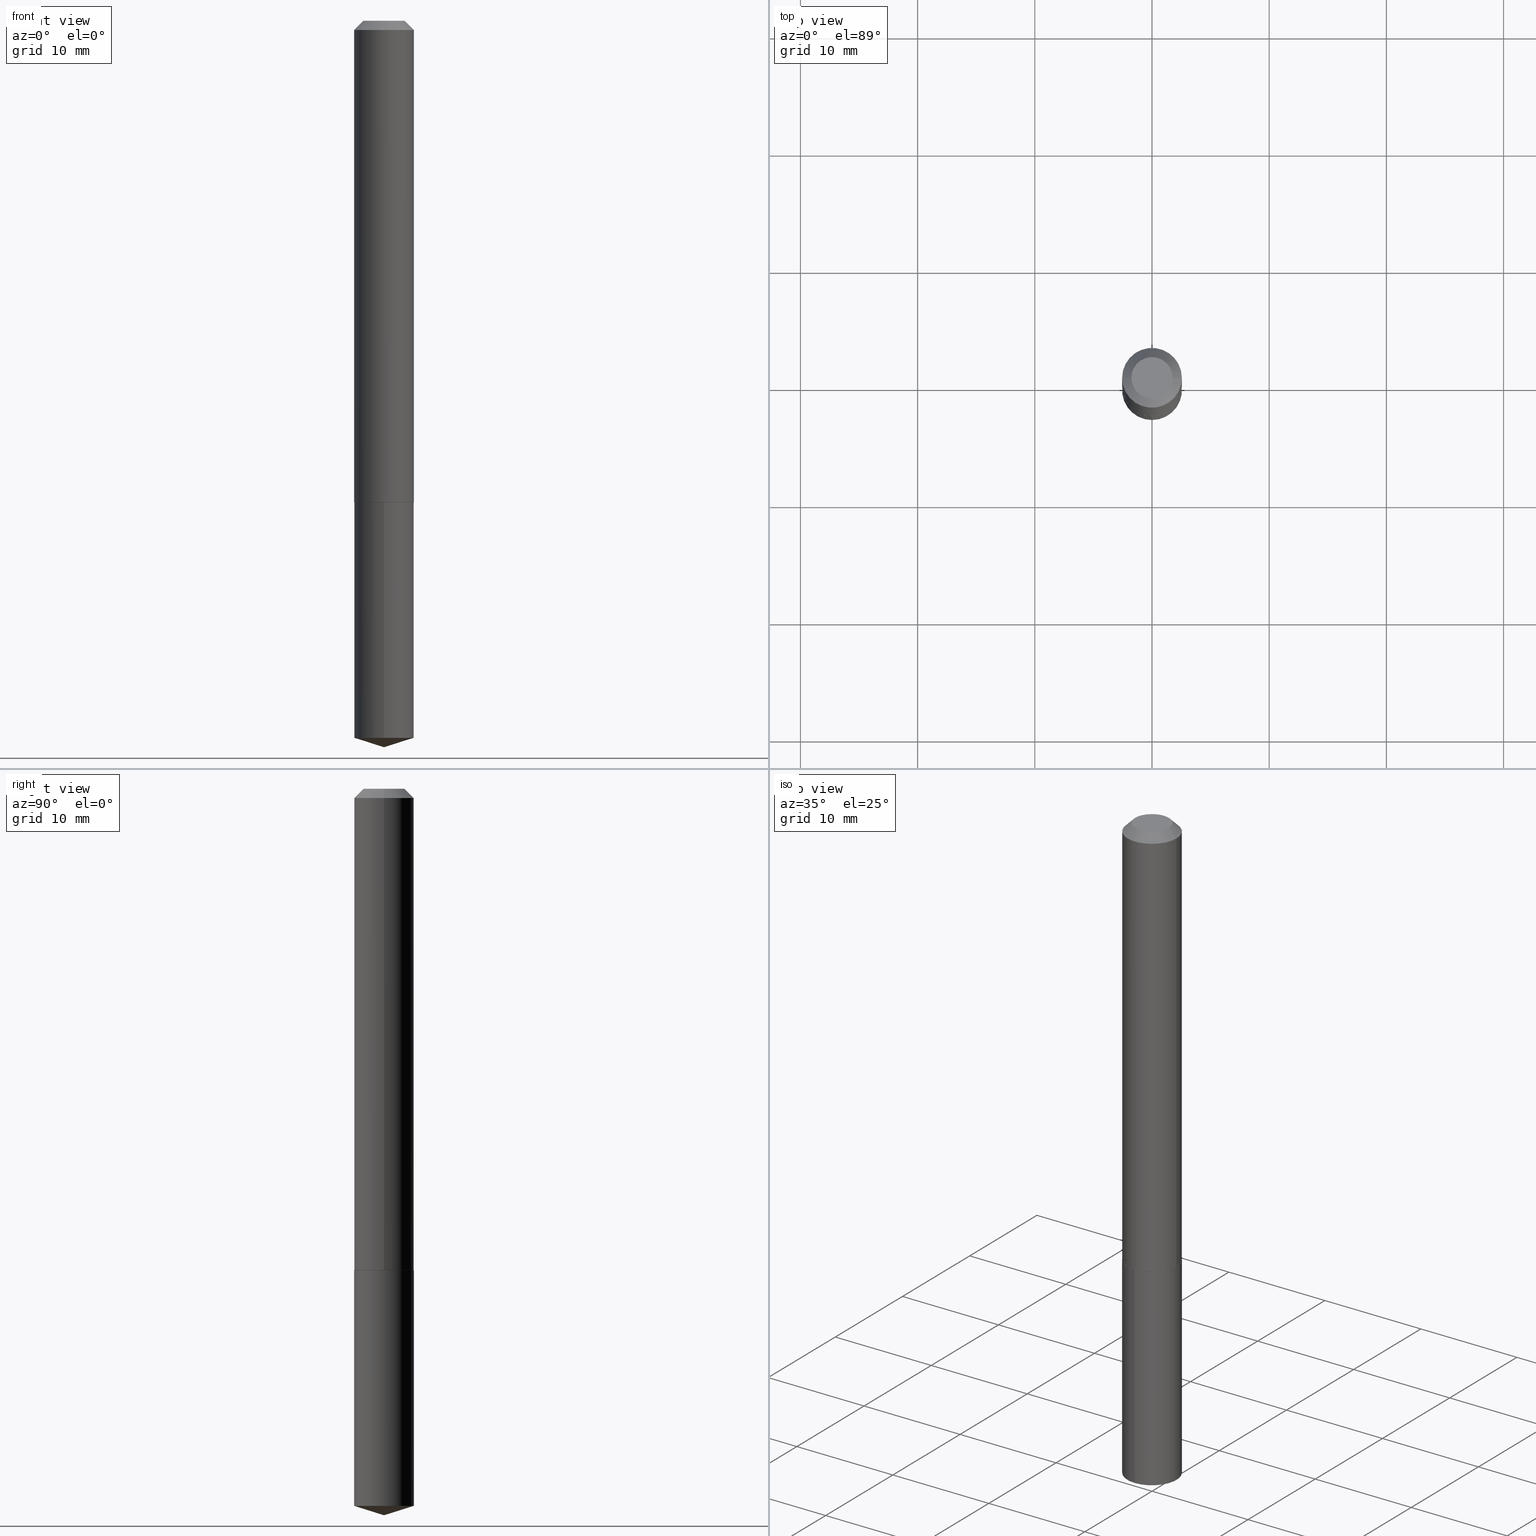
[diagram: canonical four-view strip — front | top / right | iso, engineering-drawing reading convention]
A machine part, canonical four-view strip (front | top / right | iso — engineering-drawing reading convention). The complete STEP part file that produces these views, byte-faithful:
ISO-10303-21;
HEADER;
FILE_DESCRIPTION (( 'STEP AP203' ),
    '1' );
FILE_NAME ('62113.STEP',
    '2024-04-23T06:10:52',
    ( '' ),
    ( '' ),
    'SwSTEP 2.0',
    'SolidWorks 2023',
    '' );
FILE_SCHEMA (( 'CONFIG_CONTROL_DESIGN' ));
ENDSEC;

DATA;
#1 = VERTEX_POINT ( 'NONE', #225 ) ;
#2 = CALENDAR_DATE ( 2024, 23, 4 ) ;
#3 = PERSON ( 'UNSPECIFIED', 'UNSPECIFIED', 'UNSPECIFIED', ('UNSPECIFIED'), ('UNSPECIFIED'), ('UNSPECIFIED') ) ;
#4 = DIRECTION ( 'NONE',  ( -6.982962677686266711E-15, -1.000000000000000000, 2.720964137115799877E-15 ) ) ;
#5 = CONICAL_SURFACE ( 'NONE', #289, 0.1004000000000000170, 0.7853981633974456145 ) ;
#6 = VERTEX_POINT ( 'NONE', #379 ) ;
#7 =( LENGTH_UNIT ( ) NAMED_UNIT ( * ) SI_UNIT ( $, .METRE. ) );
#8 = DIRECTION ( 'NONE',  ( 1.000000000000000000, -6.982962677686262766E-15, 0.000000000000000000 ) ) ;
#9 = ORIENTED_EDGE ( 'NONE', *, *, #31, .T. ) ;
#10 = DESIGN_CONTEXT ( 'detailed design', #189, 'design' ) ;
#11 = CC_DESIGN_PERSON_AND_ORGANIZATION_ASSIGNMENT ( #86, #172, ( #319 ) ) ;
#12 = ORIENTED_EDGE ( 'NONE', *, *, #358, .T. ) ;
#13 = LINE ( 'NONE', #130, #42 ) ;
#14 = LINE ( 'NONE', #323, #340 ) ;
#15 = DIRECTION ( 'NONE',  ( 0.7071067811864267805, -2.468850131080992517E-15, 0.7071067811866682540 ) ) ;
#16 = CARTESIAN_POINT ( 'NONE',  ( 3.957013075288169897E-29, -5.649565954382093886E-15, -1.618100000000000094 ) ) ;
#17 = APPROVAL ( #333, 'UNSPECIFIED' ) ;
#18 = PERSON_AND_ORGANIZATION ( #3, #220 ) ;
#19 = DIRECTION ( 'NONE',  ( -2.445468806185136597E-29, 3.491481338843145583E-15, 1.000000000000000000 ) ) ;
#20 = CIRCLE ( 'NONE', #240, 0.09990000000000021085 ) ;
#21 = PERSON_AND_ORGANIZATION_ROLE ( 'design_supplier' ) ;
#22 = DIRECTION ( 'NONE',  ( -1.000000000000000000, 6.982962677686266711E-15, 0.000000000000000000 ) ) ;
#23 = MECHANICAL_CONTEXT ( 'NONE', #92, 'mechanical' ) ;
#24 = ADVANCED_FACE ( 'NONE', ( #197 ), #164, .T. ) ;
#25 = APPROVAL_ROLE ( '' ) ;
#26 = DIRECTION ( 'NONE',  ( -2.445468806185136597E-29, 3.491481338843145583E-15, 1.000000000000000000 ) ) ;
#27 = EDGE_CURVE ( 'NONE', #244, #6, #191, .T. ) ;
#28 = CARTESIAN_POINT ( 'NONE',  ( 7.133849067031995762E-16, 0.1003999999999943549, -1.618100000000000316 ) ) ;
#29 = CYLINDRICAL_SURFACE ( 'NONE', #44, 0.1004000000000001142 ) ;
#30 = CARTESIAN_POINT ( 'NONE',  ( -0.06915000000000000313, 5.374262650814288063E-16, -1.904325772674491171E-17 ) ) ;
#31 = EDGE_CURVE ( 'NONE', #287, #37, #14, .T. ) ;
#32 = EDGE_LOOP ( 'NONE', ( #103, #282, #347, #316 ) ) ;
#33 = ORIENTED_EDGE ( 'NONE', *, *, #143, .F. ) ;
#34 = DIRECTION ( 'NONE',  ( -0.7071067811864267805, 7.493145998869918709E-15, 0.7071067811866682540 ) ) ;
#35 = CONICAL_SURFACE ( 'NONE', #274, 0.1004000000000002113, 0.7853981633972775267 ) ;
#36 = VERTEX_POINT ( 'NONE', #265 ) ;
#37 = VERTEX_POINT ( 'NONE', #110 ) ;
#38 = EDGE_CURVE ( 'NONE', #370, #75, #79, .T. ) ;
#39 = CARTESIAN_POINT ( 'NONE',  ( 0.1004000000000002113, -6.348909666552376614E-15, -1.617600000000000149 ) ) ;
#40 = ORIENTED_EDGE ( 'NONE', *, *, #27, .T. ) ;
#41 = VECTOR ( 'NONE', #216, 39.37007874015748143 ) ;
#42 = VECTOR ( 'NONE', #108, 39.37007874015748143 ) ;
#43 = DIRECTION ( 'NONE',  ( -6.982962677686266711E-15, -1.000000000000000000, 2.720964137115799877E-15 ) ) ;
#44 = AXIS2_PLACEMENT_3D ( 'NONE', #206, #241, #242 ) ;
#45 = ADVANCED_FACE ( 'NONE', ( #293 ), #193, .T. ) ;
#46 = CARTESIAN_POINT ( 'NONE',  ( 3.957013075288169897E-29, -5.649565954382093886E-15, -1.618100000000000094 ) ) ;
#47 = CARTESIAN_POINT ( 'NONE',  ( 2.328484636944501653E-46, -3.324458949184897582E-32, -9.521628863370673213E-18 ) ) ;
#48 = DATE_AND_TIME ( #322, #281 ) ;
#49 = ORIENTED_EDGE ( 'NONE', *, *, #38, .T. ) ;
#50 = LOCAL_TIME ( 2, 10, 52.00000000000000000, #302 ) ;
#51 = PERSON_AND_ORGANIZATION ( #3, #220 ) ;
#52 = PERSON_AND_ORGANIZATION_ROLE ( 'creator' ) ;
#53 =( CONVERSION_BASED_UNIT ( 'INCH', #294 ) LENGTH_UNIT ( ) NAMED_UNIT ( #378 ) );
#54 = DATE_TIME_ROLE ( 'classification_date' ) ;
#55 = FACE_OUTER_BOUND ( 'NONE', #160, .T. ) ;
#56 = EDGE_CURVE ( 'NONE', #1, #278, #145, .T. ) ;
#57 = COORDINATED_UNIVERSAL_TIME_OFFSET ( 5, 0, .BEHIND. ) ;
#58 = DIRECTION ( 'NONE',  ( 6.982962677686265922E-15, 1.000000000000000000, -3.485039214504230177E-15 ) ) ;
#59 = CYLINDRICAL_SURFACE ( 'NONE', #190, 0.1004000000000001142 ) ;
#60 = ORIENTED_EDGE ( 'NONE', *, *, #270, .T. ) ;
#61 = ADVANCED_FACE ( 'NONE', ( #194 ), #243, .T. ) ;
#62 = DIRECTION ( 'NONE',  ( -2.445468806185136597E-29, 3.491481338843145583E-15, 1.000000000000000000 ) ) ;
#63 = PRODUCT_DEFINITION_SHAPE ( 'NONE', 'NONE',  #303 ) ;
#64 = ORIENTED_EDGE ( 'NONE', *, *, #136, .T. ) ;
#65 = CARTESIAN_POINT ( 'NONE',  ( 5.980252882649916793E-29, -8.506632218683377281E-15, -2.440900000000000070 ) ) ;
#66 = ADVANCED_FACE ( 'NONE', ( #170 ), #355, .F. ) ;
#67 = DIRECTION ( 'NONE',  ( 1.000000000000000000, -6.982962677686266711E-15, 0.000000000000000000 ) ) ;
#68 = CC_DESIGN_APPROVAL ( #253, ( #128 ) ) ;
#69 = EDGE_CURVE ( 'NONE', #369, #370, #348, .T. ) ;
#70 = EDGE_LOOP ( 'NONE', ( #33, #105, #350, #184 ) ) ;
#71 = UNCERTAINTY_MEASURE_WITH_UNIT (LENGTH_MEASURE( 1.000000000000000082E-05 ), #53, 'distance_accuracy_value', 'NONE');
#72 = CARTESIAN_POINT ( 'NONE',  ( 4.656969273889003305E-46, -6.648917898369795165E-32, -1.904325772674134643E-17 ) ) ;
#73 = MANIFOLD_SOLID_BREP ( 'Body-Move/Copy2[2]', #288 ) ;
#74 = LINE ( 'NONE', #39, #161 ) ;
#75 = VERTEX_POINT ( 'NONE', #234 ) ;
#76 = CONICAL_SURFACE ( 'NONE', #177, 124.8659371009132428, 1.265363707695887463 ) ;
#77 = AXIS2_PLACEMENT_3D ( 'NONE', #149, #90, #4 ) ;
#78 = DIRECTION ( 'NONE',  ( 2.438088387897960049E-29, -3.491481338843145188E-15, -1.000000000000000000 ) ) ;
#79 = LINE ( 'NONE', #298, #168 ) ;
#80 = APPROVAL_STATUS ( 'not_yet_approved' ) ;
#81 = DIRECTION ( 'NONE',  ( -2.449967317567502477E-29, 3.485039214504230177E-15, 1.000000000000000000 ) ) ;
#82 = MANIFOLD_SOLID_BREP ( 'Body-Move/Copy2[1]', #262 ) ;
#83 = FACE_OUTER_BOUND ( 'NONE', #310, .T. ) ;
#84 = AXIS2_PLACEMENT_3D ( 'NONE', #101, #228, #67 ) ;
#85 = COORDINATED_UNIVERSAL_TIME_OFFSET ( 5, 0, .BEHIND. ) ;
#86 = PERSON_AND_ORGANIZATION ( #3, #220 ) ;
#87 = PERSON_AND_ORGANIZATION ( #3, #220 ) ;
#88 = ADVANCED_FACE ( 'NONE', ( #83 ), #76, .T. ) ;
#89 = CIRCLE ( 'NONE', #113, 0.1004000000000002113 ) ;
#90 = DIRECTION ( 'NONE',  ( -2.449967317567502477E-29, 3.485039214504230177E-15, 1.000000000000000000 ) ) ;
#91 = CARTESIAN_POINT ( 'NONE',  ( -0.1004000000000002113, -4.934435307009531477E-15, -1.617600000000000149 ) ) ;
#92 = APPLICATION_CONTEXT ( 'configuration controlled 3d designs of mechanical parts and assemblies' ) ;
#93 = LOCAL_TIME ( 2, 10, 52.00000000000000000, #233 ) ;
#94 = DIRECTION ( 'NONE',  ( 2.449967317567502477E-29, -3.485039214504230177E-15, -1.000000000000000000 ) ) ;
#95 = ORIENTED_EDGE ( 'NONE', *, *, #116, .F. ) ;
#96 = LINE ( 'NONE', #65, #134 ) ;
#97 = ORIENTED_EDGE ( 'NONE', *, *, #166, .F. ) ;
#98 = CARTESIAN_POINT ( 'NONE',  ( 0.1004000000000002113, -6.348909666552376614E-15, -1.617600000000000149 ) ) ;
#99 = EDGE_CURVE ( 'NONE', #257, #75, #377, .T. ) ;
#100 = ORIENTED_EDGE ( 'NONE', *, *, #27, .F. ) ;
#101 = CARTESIAN_POINT ( 'NONE',  ( 7.642090019328602662E-31, -1.091087918388490267E-16, -0.03125000000000020817 ) ) ;
#102 = CC_DESIGN_SECURITY_CLASSIFICATION ( #319, ( #128 ) ) ;
#103 = ORIENTED_EDGE ( 'NONE', *, *, #212, .F. ) ;
#104 = DIRECTION ( 'NONE',  ( -6.982962677686267499E-15, -1.000000000000000000, 3.500519750498755708E-15 ) ) ;
#105 = ORIENTED_EDGE ( 'NONE', *, *, #299, .F. ) ;
#106 = CC_DESIGN_PERSON_AND_ORGANIZATION_ASSIGNMENT ( #359, #52, ( #128 ) ) ;
#107 = CARTESIAN_POINT ( 'NONE',  ( 5.895290022689288999E-29, -8.406733824265868032E-15, -2.409244001596550167 ) ) ;
#108 = DIRECTION ( 'NONE',  ( -6.659769872151623411E-15, -0.9537169507482254893, 0.3007057995042778376 ) ) ;
#109 = ORIENTED_EDGE ( 'NONE', *, *, #166, .T. ) ;
#110 = CARTESIAN_POINT ( 'NONE',  ( 0.1004000000000000170, -8.101982446785503746E-16, -0.03125000000000020817 ) ) ;
#111 = DIRECTION ( 'NONE',  ( -6.982962677686266711E-15, -1.000000000000000000, 2.720964137115799877E-15 ) ) ;
#112 = CALENDAR_DATE ( 2024, 23, 4 ) ;
#113 = AXIS2_PLACEMENT_3D ( 'NONE', #142, #365, #207 ) ;
#114 = CONICAL_SURFACE ( 'NONE', #146, 124.8659371009132428, 1.265363707695887463 ) ;
#115 = DATE_TIME_ROLE ( 'creation_date' ) ;
#116 = EDGE_CURVE ( 'NONE', #36, #209, #200, .T. ) ;
#117 = CONICAL_SURFACE ( 'NONE', #263, 0.1004000000000002113, 0.7853981633972775267 ) ;
#118 = PRODUCT_RELATED_PRODUCT_CATEGORY ( 'detail', '', ( #215 ) ) ;
#119 = FACE_OUTER_BOUND ( 'NONE', #373, .T. ) ;
#120 = ORIENTED_EDGE ( 'NONE', *, *, #249, .T. ) ;
#121 = APPROVAL_PERSON_ORGANIZATION ( #87, #388, #198 ) ;
#122 = DIRECTION ( 'NONE',  ( -0.7071067811865455743, 2.468850131082236945E-15, -0.7071067811865493491 ) ) ;
#123 = ORIENTED_EDGE ( 'NONE', *, *, #331, .F. ) ;
#124 = ADVANCED_FACE ( 'NONE', ( #55 ), #35, .T. ) ;
#125 = ORIENTED_EDGE ( 'NONE', *, *, #69, .F. ) ;
#126 = CARTESIAN_POINT ( 'NONE',  ( 7.642090019328602662E-31, -1.091087918388490267E-16, -0.03125000000000020817 ) ) ;
#127 = EDGE_LOOP ( 'NONE', ( #280, #367, #230, #129 ) ) ;
#128 = PRODUCT_DEFINITION_FORMATION_WITH_SPECIFIED_SOURCE ( 'ANY', '', #215, .NOT_KNOWN. ) ;
#129 = ORIENTED_EDGE ( 'NONE', *, *, #237, .F. ) ;
#130 = CARTESIAN_POINT ( 'NONE',  ( 5.965567142914904310E-29, -8.527480221468974410E-15, -2.440900000000000070 ) ) ;
#131 = DIRECTION ( 'NONE',  ( -2.449967317567502477E-29, 3.485039214504230177E-15, 1.000000000000000000 ) ) ;
#132 = FACE_OUTER_BOUND ( 'NONE', #70, .T. ) ;
#133 = DIRECTION ( 'NONE',  ( -2.449967317567502477E-29, 3.485039214504230177E-15, 1.000000000000000000 ) ) ;
#134 = VECTOR ( 'NONE', #180, 39.37007874015748854 ) ;
#135 = DIRECTION ( 'NONE',  ( 1.000000000000000000, -6.982962677686262766E-15, 0.000000000000000000 ) ) ;
#136 = EDGE_CURVE ( 'NONE', #244, #287, #89, .T. ) ;
#137 = DIRECTION ( 'NONE',  ( -2.445468806185136877E-29, 3.491481338843145188E-15, 1.000000000000000000 ) ) ;
#138 = PERSON_AND_ORGANIZATION ( #3, #220 ) ;
#139 = AXIS2_PLACEMENT_3D ( 'NONE', #188, #162, #43 ) ;
#140 = AXIS2_PLACEMENT_3D ( 'NONE', #334, #94, #58 ) ;
#141 = CARTESIAN_POINT ( 'NONE',  ( 0.000000000000000000, 0.000000000000000000, 0.000000000000000000 ) ) ;
#142 = CARTESIAN_POINT ( 'NONE',  ( 3.955790340885077095E-29, -5.647820213712673171E-15, -1.617600000000000149 ) ) ;
#143 = EDGE_CURVE ( 'NONE', #1, #37, #390, .T. ) ;
#144 = DIRECTION ( 'NONE',  ( -2.445468806185136597E-29, 3.491481338843145583E-15, 1.000000000000000000 ) ) ;
#145 = CIRCLE ( 'NONE', #208, 0.06915000000000000313 ) ;
#146 = AXIS2_PLACEMENT_3D ( 'NONE', #260, #224, #104 ) ;
#147 = PERSON_AND_ORGANIZATION ( #3, #220 ) ;
#148 = CC_DESIGN_PERSON_AND_ORGANIZATION_ASSIGNMENT ( #138, #329, ( #303 ) ) ;
#149 = CARTESIAN_POINT ( 'NONE',  ( 5.895290022689288999E-29, -8.406733824265868032E-15, -2.409244001596550167 ) ) ;
#150 = DATE_AND_TIME ( #2, #229 ) ;
#151 = LINE ( 'NONE', #176, #268 ) ;
#152 = ORIENTED_EDGE ( 'NONE', *, *, #56, .T. ) ;
#153 = ORIENTED_EDGE ( 'NONE', *, *, #249, .F. ) ;
#154 = AXIS2_PLACEMENT_3D ( 'NONE', #374, #261, #22 ) ;
#155 = CIRCLE ( 'NONE', #342, 0.1004000000000000031 ) ;
#156 = FACE_OUTER_BOUND ( 'NONE', #32, .T. ) ;
#157 = ORIENTED_EDGE ( 'NONE', *, *, #324, .F. ) ;
#158 = ORIENTED_EDGE ( 'NONE', *, *, #358, .F. ) ;
#159 = DIRECTION ( 'NONE',  ( 2.445468806185136597E-29, -3.491481338843145583E-15, -1.000000000000000000 ) ) ;
#160 = EDGE_LOOP ( 'NONE', ( #12, #181, #178, #341 ) ) ;
#161 = VECTOR ( 'NONE', #15, 39.37007874015748143 ) ;
#162 = DIRECTION ( 'NONE',  ( -2.449967317567502477E-29, 3.485039214504230177E-15, 1.000000000000000000 ) ) ;
#163 = DIRECTION ( 'NONE',  ( 1.000000000000000000, -6.982962677686266711E-15, 0.000000000000000000 ) ) ;
#164 = CYLINDRICAL_SURFACE ( 'NONE', #139, 0.1004000000000000031 ) ;
#165 = DIRECTION ( 'NONE',  ( -2.449967317567502196E-29, 3.485039214504230177E-15, 1.000000000000000000 ) ) ;
#166 = EDGE_CURVE ( 'NONE', #369, #257, #203, .T. ) ;
#167 = APPROVAL_DATE_TIME ( #48, #253 ) ;
#168 = VECTOR ( 'NONE', #165, 39.37007874015748143 ) ;
#169 = AXIS2_PLACEMENT_3D ( 'NONE', #72, #256, #344 ) ;
#170 = FACE_OUTER_BOUND ( 'NONE', #314, .T. ) ;
#171 = PERSON_AND_ORGANIZATION_ROLE ( 'design_owner' ) ;
#172 = PERSON_AND_ORGANIZATION_ROLE ( 'classification_officer' ) ;
#173 = CIRCLE ( 'NONE', #383, 0.1004000000000002113 ) ;
#174 = DIRECTION ( 'NONE',  ( -2.445468806185136597E-29, 3.491481338843145583E-15, 1.000000000000000000 ) ) ;
#175 = ADVANCED_FACE ( 'NONE', ( #279 ), #29, .T. ) ;
#176 = CARTESIAN_POINT ( 'NONE',  ( -0.1004000000000000170, 5.919806610008522719E-16, -0.03125000000000020817 ) ) ;
#177 = AXIS2_PLACEMENT_3D ( 'NONE', #271, #327, #226 ) ;
#178 = ORIENTED_EDGE ( 'NONE', *, *, #352, .F. ) ;
#179 = ORIENTED_EDGE ( 'NONE', *, *, #99, .F. ) ;
#180 = DIRECTION ( 'NONE',  ( 6.776566513254248671E-15, 0.9537169507482274877, 0.3007057995042711762 ) ) ;
#181 = ORIENTED_EDGE ( 'NONE', *, *, #212, .T. ) ;
#182 = AXIS2_PLACEMENT_3D ( 'NONE', #185, #183, #163 ) ;
#183 = DIRECTION ( 'NONE',  ( -2.445468806185136597E-29, 3.491481338843145583E-15, 1.000000000000000000 ) ) ;
#184 = ORIENTED_EDGE ( 'NONE', *, *, #324, .T. ) ;
#185 = CARTESIAN_POINT ( 'NONE',  ( 7.642090019328602662E-31, -1.091087918388490267E-16, -0.03125000000000020817 ) ) ;
#186 = ADVANCED_FACE ( 'NONE', ( #156 ), #117, .T. ) ;
#187 = CARTESIAN_POINT ( 'NONE',  ( 7.133849067031995762E-16, 0.1003999999999916071, -2.409244001596550167 ) ) ;
#188 = CARTESIAN_POINT ( 'NONE',  ( 3.957013075288169897E-29, -5.649565954382093886E-15, -1.618100000000000094 ) ) ;
#189 = APPLICATION_CONTEXT ( 'configuration controlled 3d designs of mechanical parts and assemblies' ) ;
#190 = AXIS2_PLACEMENT_3D ( 'NONE', #360, #144, #273 ) ;
#191 = LINE ( 'NONE', #232, #325 ) ;
#192 = CARTESIAN_POINT ( 'NONE',  ( 3.955790340885077095E-29, -5.647820213712673171E-15, -1.617600000000000149 ) ) ;
#193 = CYLINDRICAL_SURFACE ( 'NONE', #387, 0.1004000000000000031 ) ;
#194 = FACE_OUTER_BOUND ( 'NONE', #127, .T. ) ;
#195 = PERSON_AND_ORGANIZATION ( #3, #220 ) ;
#196 = CIRCLE ( 'NONE', #182, 0.1004000000000000170 ) ;
#197 = FACE_OUTER_BOUND ( 'NONE', #285, .T. ) ;
#198 = APPROVAL_ROLE ( '' ) ;
#199 = APPROVAL_STATUS ( 'not_yet_approved' ) ;
#200 = CIRCLE ( 'NONE', #210, 0.09990000000000021085 ) ;
#201 = CIRCLE ( 'NONE', #169, 0.06915000000000000313 ) ;
#202 = APPROVAL_DATE_TIME ( #150, #17 ) ;
#203 = LINE ( 'NONE', #306, #41 ) ;
#204 = ADVANCED_FACE ( 'NONE', ( #119 ), #213, .F. ) ;
#205 = SHAPE_DEFINITION_REPRESENTATION ( #63, #272 ) ;
#206 = CARTESIAN_POINT ( 'NONE',  ( 0.000000000000000000, 0.000000000000000000, 0.000000000000000000 ) ) ;
#207 = DIRECTION ( 'NONE',  ( 1.000000000000000000, -6.982962677686267499E-15, 0.000000000000000000 ) ) ;
#208 = AXIS2_PLACEMENT_3D ( 'NONE', #259, #26, #380 ) ;
#209 = VERTEX_POINT ( 'NONE', #364 ) ;
#210 = AXIS2_PLACEMENT_3D ( 'NONE', #376, #19, #135 ) ;
#211 = APPROVAL_PERSON_ORGANIZATION ( #195, #253, #238 ) ;
#212 = EDGE_CURVE ( 'NONE', #36, #244, #336, .T. ) ;
#213 = PLANE ( 'NONE',  #140 ) ;
#214 = ORIENTED_EDGE ( 'NONE', *, *, #299, .T. ) ;
#215 = PRODUCT ( '62113', '62113', '', ( #23 ) ) ;
#216 = DIRECTION ( 'NONE',  ( -2.449967317567502196E-29, 3.485039214504230177E-15, 1.000000000000000000 ) ) ;
#217 = ORIENTED_EDGE ( 'NONE', *, *, #38, .F. ) ;
#218 = EDGE_CURVE ( 'NONE', #370, #369, #366, .T. ) ;
#219 = ORIENTED_EDGE ( 'NONE', *, *, #99, .T. ) ;
#220 = ORGANIZATION ( 'UNSPECIFIED', 'UNSPECIFIED', '' ) ;
#221 = CARTESIAN_POINT ( 'NONE',  ( -7.010894528396421094E-16, -0.1004000000000084131, -2.409244001596549722 ) ) ;
#222 = CC_DESIGN_DATE_AND_TIME_ASSIGNMENT ( #267, #115, ( #303 ) ) ;
#223 = EDGE_LOOP ( 'NONE', ( #100, #64, #9, #157 ) ) ;
#224 = DIRECTION ( 'NONE',  ( -2.449967317567502477E-29, 3.485039214504230177E-15, 1.000000000000000000 ) ) ;
#225 = CARTESIAN_POINT ( 'NONE',  ( 0.06915000000000000313, -6.361531136805062102E-16, -1.904325772673743294E-17 ) ) ;
#226 = DIRECTION ( 'NONE',  ( -6.982962677686267499E-15, -1.000000000000000000, 3.500519750498755708E-15 ) ) ;
#227 = CC_DESIGN_PERSON_AND_ORGANIZATION_ASSIGNMENT ( #51, #21, ( #128 ) ) ;
#228 = DIRECTION ( 'NONE',  ( -2.445468806185136597E-29, 3.491481338843145583E-15, 1.000000000000000000 ) ) ;
#229 = LOCAL_TIME ( 2, 10, 52.00000000000000000, #57 ) ;
#230 = ORIENTED_EDGE ( 'NONE', *, *, #331, .T. ) ;
#231 = DIRECTION ( 'NONE',  ( 0.000000000000000000, 0.000000000000000000, 1.000000000000000000 ) ) ;
#232 = CARTESIAN_POINT ( 'NONE',  ( -0.1004000000000001142, 7.133849067031413977E-16, -4.938610830615930599E-30 ) ) ;
#233 = COORDINATED_UNIVERSAL_TIME_OFFSET ( 5, 0, .BEHIND. ) ;
#234 = CARTESIAN_POINT ( 'NONE',  ( -7.010894528396616337E-16, -0.1004000000000056514, -1.618099999999999872 ) ) ;
#235 = APPLICATION_PROTOCOL_DEFINITION ( 'international standard', 'config_control_design', 1994, #92 ) ;
#236 =( GEOMETRIC_REPRESENTATION_CONTEXT ( 3 ) GLOBAL_UNCERTAINTY_ASSIGNED_CONTEXT ( ( #71 ) ) GLOBAL_UNIT_ASSIGNED_CONTEXT ( ( #53, #301, #300 ) ) REPRESENTATION_CONTEXT ( 'NONE', 'WORKASPACE' ) );
#237 = EDGE_CURVE ( 'NONE', #278, #6, #151, .T. ) ;
#238 = APPROVAL_ROLE ( '' ) ;
#239 = DIRECTION ( 'NONE',  ( 1.000000000000000000, -6.982962677686267499E-15, 0.000000000000000000 ) ) ;
#240 = AXIS2_PLACEMENT_3D ( 'NONE', #258, #284, #8 ) ;
#241 = DIRECTION ( 'NONE',  ( -2.445468806185136597E-29, 3.491481338843145583E-15, 1.000000000000000000 ) ) ;
#242 = DIRECTION ( 'NONE',  ( 1.000000000000000000, -6.982962677686266711E-15, 4.876176775795935232E-29 ) ) ;
#243 = CONICAL_SURFACE ( 'NONE', #154, 0.1004000000000000170, 0.7853981633974456145 ) ;
#244 = VERTEX_POINT ( 'NONE', #91 ) ;
#245 = LOCAL_TIME ( 2, 10, 52.00000000000000000, #382 ) ;
#246 = DATE_AND_TIME ( #362, #50 ) ;
#247 = DIRECTION ( 'NONE',  ( -2.449967317567502477E-29, 3.485039214504230177E-15, 1.000000000000000000 ) ) ;
#248 = ORIENTED_EDGE ( 'NONE', *, *, #69, .T. ) ;
#249 = EDGE_CURVE ( 'NONE', #75, #257, #155, .T. ) ;
#250 = DIRECTION ( 'NONE',  ( -1.000000000000000000, 6.982962677686266711E-15, 0.000000000000000000 ) ) ;
#251 = EDGE_LOOP ( 'NONE', ( #158, #95 ) ) ;
#252 = DIRECTION ( 'NONE',  ( 1.000000000000000000, -6.982962677686267499E-15, 0.000000000000000000 ) ) ;
#253 = APPROVAL ( #80, 'UNSPECIFIED' ) ;
#254 = ORIENTED_EDGE ( 'NONE', *, *, #218, .T. ) ;
#255 = AXIS2_PLACEMENT_3D ( 'NONE', #47, #78, #320 ) ;
#256 = DIRECTION ( 'NONE',  ( -2.445468806185136597E-29, 3.491481338843145583E-15, 1.000000000000000000 ) ) ;
#257 = VERTEX_POINT ( 'NONE', #28 ) ;
#258 = CARTESIAN_POINT ( 'NONE',  ( 3.957013075288171018E-29, -5.649565954382094675E-15, -1.618100000000000316 ) ) ;
#259 = CARTESIAN_POINT ( 'NONE',  ( 4.656969273889003305E-46, -6.648917898369795165E-32, -1.904325772674134643E-17 ) ) ;
#260 = CARTESIAN_POINT ( 'NONE',  ( -9.048256001926227020E-28, 1.286892120674919305E-13, 36.92917874015748225 ) ) ;
#261 = DIRECTION ( 'NONE',  ( 2.445468806185136597E-29, -3.491481338843145583E-15, -1.000000000000000000 ) ) ;
#262 = CLOSED_SHELL ( 'NONE', ( #24, #283, #88, #45, #204 ) ) ;
#263 = AXIS2_PLACEMENT_3D ( 'NONE', #386, #62, #239 ) ;
#264 = CARTESIAN_POINT ( 'NONE',  ( 3.955790340885077095E-29, -5.647820213712673171E-15, -1.617600000000000149 ) ) ;
#265 = CARTESIAN_POINT ( 'NONE',  ( -0.09990000000000021085, -4.937084534183643467E-15, -1.618100000000000316 ) ) ;
#266 = APPROVAL_DATE_TIME ( #326, #388 ) ;
#267 = DATE_AND_TIME ( #112, #245 ) ;
#268 = VECTOR ( 'NONE', #122, 39.37007874015748854 ) ;
#269 = CIRCLE ( 'NONE', #84, 0.1004000000000000170 ) ;
#270 = EDGE_CURVE ( 'NONE', #371, #369, #96, .T. ) ;
#271 = CARTESIAN_POINT ( 'NONE',  ( -9.048256001926227020E-28, 1.286892120674919305E-13, 36.92917874015748225 ) ) ;
#272 = ADVANCED_BREP_SHAPE_REPRESENTATION ( '62113', ( #82, #73, #389 ), #236 ) ;
#273 = DIRECTION ( 'NONE',  ( 1.000000000000000000, -6.982962677686266711E-15, 4.876176775795935232E-29 ) ) ;
#274 = AXIS2_PLACEMENT_3D ( 'NONE', #264, #174, #304 ) ;
#275 = VECTOR ( 'NONE', #34, 39.37007874015748143 ) ;
#276 = FACE_OUTER_BOUND ( 'NONE', #353, .T. ) ;
#277 = ADVANCED_FACE ( 'NONE', ( #311 ), #59, .T. ) ;
#278 = VERTEX_POINT ( 'NONE', #30 ) ;
#279 = FACE_OUTER_BOUND ( 'NONE', #343, .T. ) ;
#280 = ORIENTED_EDGE ( 'NONE', *, *, #56, .F. ) ;
#281 = LOCAL_TIME ( 2, 10, 52.00000000000000000, #85 ) ;
#282 = ORIENTED_EDGE ( 'NONE', *, *, #116, .T. ) ;
#283 = ADVANCED_FACE ( 'NONE', ( #276 ), #114, .T. ) ;
#284 = DIRECTION ( 'NONE',  ( -2.445468806185136597E-29, 3.491481338843145583E-15, 1.000000000000000000 ) ) ;
#285 = EDGE_LOOP ( 'NONE', ( #254, #109, #153, #217 ) ) ;
#286 = FACE_OUTER_BOUND ( 'NONE', #251, .T. ) ;
#287 = VERTEX_POINT ( 'NONE', #98 ) ;
#288 = CLOSED_SHELL ( 'NONE', ( #61, #175, #124, #384, #186, #277, #361, #66 ) ) ;
#289 = AXIS2_PLACEMENT_3D ( 'NONE', #126, #159, #250 ) ;
#290 = DIRECTION ( 'NONE',  ( -2.438088387897960049E-29, 3.491481338843145188E-15, 1.000000000000000000 ) ) ;
#291 = DIRECTION ( 'NONE',  ( -2.445468806185136877E-29, 3.491481338843145188E-15, 1.000000000000000000 ) ) ;
#292 = DIRECTION ( 'NONE',  ( -2.445468806185136597E-29, 3.491481338843145583E-15, 1.000000000000000000 ) ) ;
#293 = FACE_OUTER_BOUND ( 'NONE', #313, .T. ) ;
#294 = LENGTH_MEASURE_WITH_UNIT ( LENGTH_MEASURE( 0.02539999999999999897 ), #7 );
#295 = DIRECTION ( 'NONE',  ( -6.982962677686266711E-15, -1.000000000000000000, 2.720964137115799877E-15 ) ) ;
#296 = SECURITY_CLASSIFICATION_LEVEL ( 'unclassified' ) ;
#297 = AXIS2_PLACEMENT_3D ( 'NONE', #317, #290, #375 ) ;
#298 = CARTESIAN_POINT ( 'NONE',  ( -7.010894528396616337E-16, -0.1004000000000056514, -1.618099999999999872 ) ) ;
#299 = EDGE_CURVE ( 'NONE', #278, #1, #201, .T. ) ;
#300 =( NAMED_UNIT ( * ) SI_UNIT ( $, .STERADIAN. ) SOLID_ANGLE_UNIT ( ) );
#301 =( NAMED_UNIT ( * ) PLANE_ANGLE_UNIT ( ) SI_UNIT ( $, .RADIAN. ) );
#302 = COORDINATED_UNIVERSAL_TIME_OFFSET ( 5, 0, .BEHIND. ) ;
#303 = PRODUCT_DEFINITION ( 'UNKNOWN', '', #128, #10 ) ;
#304 = DIRECTION ( 'NONE',  ( 1.000000000000000000, -6.982962677686267499E-15, 0.000000000000000000 ) ) ;
#305 = CARTESIAN_POINT ( 'NONE',  ( 3.957013075288169897E-29, -5.649565954382093886E-15, -1.618100000000000094 ) ) ;
#306 = CARTESIAN_POINT ( 'NONE',  ( 7.133849067031800519E-16, 0.1003999999999943549, -1.618100000000000316 ) ) ;
#307 = CC_DESIGN_APPROVAL ( #388, ( #303 ) ) ;
#308 = DIRECTION ( 'NONE',  ( -6.982962677686266711E-15, -1.000000000000000000, 2.720964137115799877E-15 ) ) ;
#309 = ORIENTED_EDGE ( 'NONE', *, *, #385, .T. ) ;
#310 = EDGE_LOOP ( 'NONE', ( #335, #309, #125 ) ) ;
#311 = FACE_OUTER_BOUND ( 'NONE', #223, .T. ) ;
#312 = VECTOR ( 'NONE', #338, 39.37007874015748854 ) ;
#313 = EDGE_LOOP ( 'NONE', ( #97, #248, #49, #179 ) ) ;
#314 = EDGE_LOOP ( 'NONE', ( #214, #152 ) ) ;
#315 = CARTESIAN_POINT ( 'NONE',  ( 5.980125225450516901E-29, -8.506632218683375703E-15, -2.440900000000000070 ) ) ;
#316 = ORIENTED_EDGE ( 'NONE', *, *, #136, .F. ) ;
#317 = CARTESIAN_POINT ( 'NONE',  ( 3.957013075288171018E-29, -5.649565954382094675E-15, -1.618100000000000316 ) ) ;
#318 = ORIENTED_EDGE ( 'NONE', *, *, #352, .T. ) ;
#319 = SECURITY_CLASSIFICATION ( '', '', #296 ) ;
#320 = DIRECTION ( 'NONE',  ( -1.000000000000000000, 6.982962677686265922E-15, -4.876176775795935793E-29 ) ) ;
#321 = DIRECTION ( 'NONE',  ( -6.982962677686266711E-15, -1.000000000000000000, 2.720964137115799877E-15 ) ) ;
#322 = CALENDAR_DATE ( 2024, 23, 4 ) ;
#323 = CARTESIAN_POINT ( 'NONE',  ( 0.1004000000000001142, -7.010894528397019642E-16, 4.895681482899124760E-30 ) ) ;
#324 = EDGE_CURVE ( 'NONE', #6, #37, #269, .T. ) ;
#325 = VECTOR ( 'NONE', #291, 39.37007874015748143 ) ;
#326 = DATE_AND_TIME ( #354, #93 ) ;
#327 = DIRECTION ( 'NONE',  ( -2.449967317567502477E-29, 3.485039214504230177E-15, 1.000000000000000000 ) ) ;
#328 = APPLICATION_PROTOCOL_DEFINITION ( 'international standard', 'config_control_design', 1994, #189 ) ;
#329 = PERSON_AND_ORGANIZATION_ROLE ( 'creator' ) ;
#330 = CARTESIAN_POINT ( 'NONE',  ( -0.1004000000000002113, -4.934435307009531477E-15, -1.617600000000000149 ) ) ;
#331 = EDGE_CURVE ( 'NONE', #37, #6, #196, .T. ) ;
#332 = CARTESIAN_POINT ( 'NONE',  ( 0.1004000000000000170, -7.979027908151110397E-16, -0.03125000000000020817 ) ) ;
#333 = APPROVAL_STATUS ( 'not_yet_approved' ) ;
#334 = CARTESIAN_POINT ( 'NONE',  ( 3.957013075288169897E-29, -5.649565954382093886E-15, -1.618100000000000094 ) ) ;
#335 = ORIENTED_EDGE ( 'NONE', *, *, #270, .F. ) ;
#336 = LINE ( 'NONE', #330, #275 ) ;
#337 = ORIENTED_EDGE ( 'NONE', *, *, #31, .F. ) ;
#338 = DIRECTION ( 'NONE',  ( 0.7071067811865455743, -7.319954787623248157E-15, -0.7071067811865493491 ) ) ;
#339 = ORIENTED_EDGE ( 'NONE', *, *, #385, .F. ) ;
#340 = VECTOR ( 'NONE', #137, 39.37007874015748143 ) ;
#341 = ORIENTED_EDGE ( 'NONE', *, *, #363, .F. ) ;
#342 = AXIS2_PLACEMENT_3D ( 'NONE', #305, #247, #308 ) ;
#343 = EDGE_LOOP ( 'NONE', ( #318, #40, #123, #337 ) ) ;
#344 = DIRECTION ( 'NONE',  ( 1.000000000000000000, -6.982962677686266711E-15, 4.874009259114479341E-29 ) ) ;
#345 = ORIENTED_EDGE ( 'NONE', *, *, #218, .F. ) ;
#346 = CC_DESIGN_DATE_AND_TIME_ASSIGNMENT ( #246, #54, ( #319 ) ) ;
#347 = ORIENTED_EDGE ( 'NONE', *, *, #363, .T. ) ;
#348 = CIRCLE ( 'NONE', #356, 0.1004000000000000031 ) ;
#349 = APPROVAL_PERSON_ORGANIZATION ( #147, #17, #25 ) ;
#350 = ORIENTED_EDGE ( 'NONE', *, *, #237, .T. ) ;
#351 = DIRECTION ( 'NONE',  ( 1.000000000000000000, 0.000000000000000000, 0.000000000000000000 ) ) ;
#352 = EDGE_CURVE ( 'NONE', #287, #244, #173, .T. ) ;
#353 = EDGE_LOOP ( 'NONE', ( #339, #60, #345 ) ) ;
#354 = CALENDAR_DATE ( 2024, 23, 4 ) ;
#355 = PLANE ( 'NONE',  #255 ) ;
#356 = AXIS2_PLACEMENT_3D ( 'NONE', #107, #81, #111 ) ;
#357 = CC_DESIGN_APPROVAL ( #17, ( #319 ) ) ;
#358 = EDGE_CURVE ( 'NONE', #209, #36, #20, .T. ) ;
#359 = PERSON_AND_ORGANIZATION ( #3, #220 ) ;
#360 = CARTESIAN_POINT ( 'NONE',  ( 0.000000000000000000, 0.000000000000000000, 0.000000000000000000 ) ) ;
#361 = ADVANCED_FACE ( 'NONE', ( #132 ), #5, .T. ) ;
#362 = CALENDAR_DATE ( 2024, 23, 4 ) ;
#363 = EDGE_CURVE ( 'NONE', #209, #287, #74, .T. ) ;
#364 = CARTESIAN_POINT ( 'NONE',  ( 0.09990000000000021085, -6.347163925882954322E-15, -1.618100000000000316 ) ) ;
#365 = DIRECTION ( 'NONE',  ( -2.445468806185136597E-29, 3.491481338843145583E-15, 1.000000000000000000 ) ) ;
#366 = CIRCLE ( 'NONE', #77, 0.1004000000000000031 ) ;
#367 = ORIENTED_EDGE ( 'NONE', *, *, #143, .T. ) ;
#368 = CC_DESIGN_PERSON_AND_ORGANIZATION_ASSIGNMENT ( #18, #171, ( #215 ) ) ;
#369 = VERTEX_POINT ( 'NONE', #187 ) ;
#370 = VERTEX_POINT ( 'NONE', #221 ) ;
#371 = VERTEX_POINT ( 'NONE', #315 ) ;
#372 = PLANE ( 'NONE',  #297 ) ;
#373 = EDGE_LOOP ( 'NONE', ( #120, #219 ) ) ;
#374 = CARTESIAN_POINT ( 'NONE',  ( 7.642090019328602662E-31, -1.091087918388490267E-16, -0.03125000000000020817 ) ) ;
#375 = DIRECTION ( 'NONE',  ( 1.000000000000000000, -6.982962677686265922E-15, 4.876176775795935793E-29 ) ) ;
#376 = CARTESIAN_POINT ( 'NONE',  ( 3.957013075288171018E-29, -5.649565954382094675E-15, -1.618100000000000316 ) ) ;
#377 = CIRCLE ( 'NONE', #381, 0.1004000000000000031 ) ;
#378 = DIMENSIONAL_EXPONENTS ( 1.000000000000000000, 0.000000000000000000, 0.000000000000000000, 0.000000000000000000, 0.000000000000000000, 0.000000000000000000, 0.000000000000000000 ) ;
#379 = CARTESIAN_POINT ( 'NONE',  ( -0.1004000000000000170, -2.165079596072618653E-15, -0.03125000000000020817 ) ) ;
#380 = DIRECTION ( 'NONE',  ( 1.000000000000000000, -6.982962677686266711E-15, 4.874009259114479341E-29 ) ) ;
#381 = AXIS2_PLACEMENT_3D ( 'NONE', #46, #133, #295 ) ;
#382 = COORDINATED_UNIVERSAL_TIME_OFFSET ( 5, 0, .BEHIND. ) ;
#383 = AXIS2_PLACEMENT_3D ( 'NONE', #192, #292, #252 ) ;
#384 = ADVANCED_FACE ( 'NONE', ( #286 ), #372, .F. ) ;
#385 = EDGE_CURVE ( 'NONE', #371, #370, #13, .T. ) ;
#386 = CARTESIAN_POINT ( 'NONE',  ( 3.955790340885077095E-29, -5.647820213712673171E-15, -1.617600000000000149 ) ) ;
#387 = AXIS2_PLACEMENT_3D ( 'NONE', #16, #131, #321 ) ;
#388 = APPROVAL ( #199, 'UNSPECIFIED' ) ;
#389 = AXIS2_PLACEMENT_3D ( 'NONE', #141, #231, #351 ) ;
#390 = LINE ( 'NONE', #332, #312 ) ;
ENDSEC;
END-ISO-10303-21;
